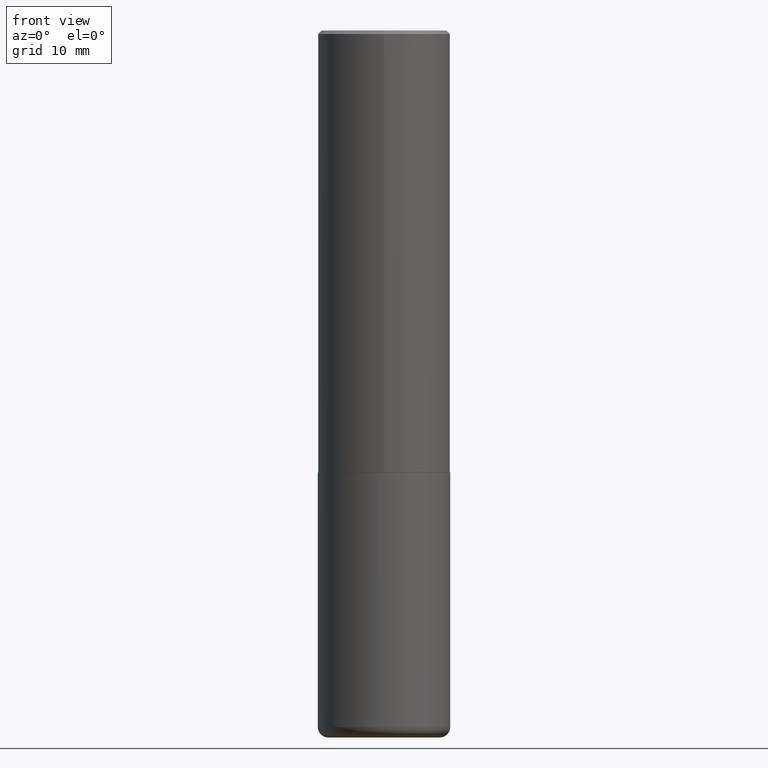
[diagram: clean part render]
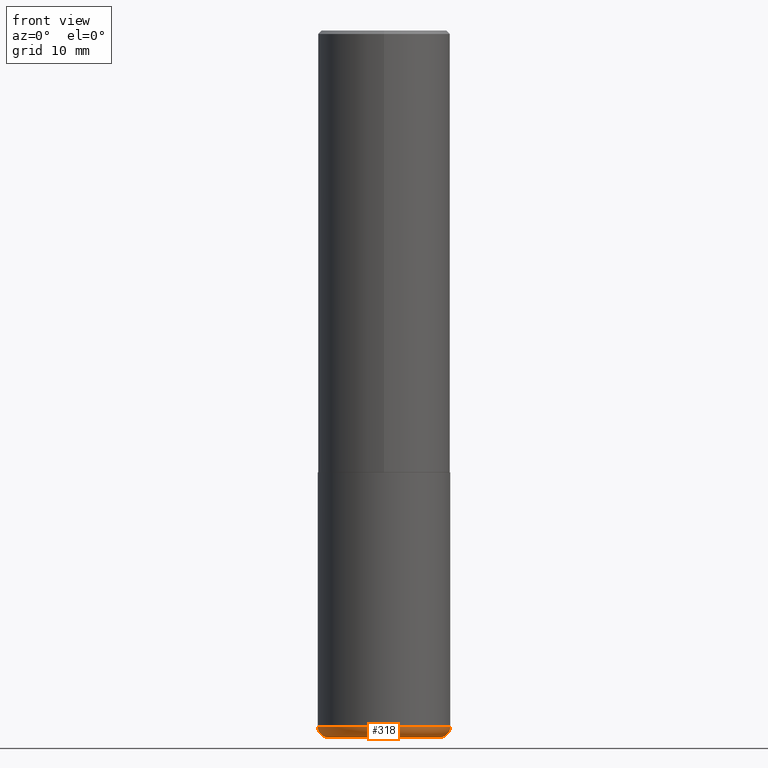
[diagram: same view with one face highlighted and labeled with its STEP entity id]
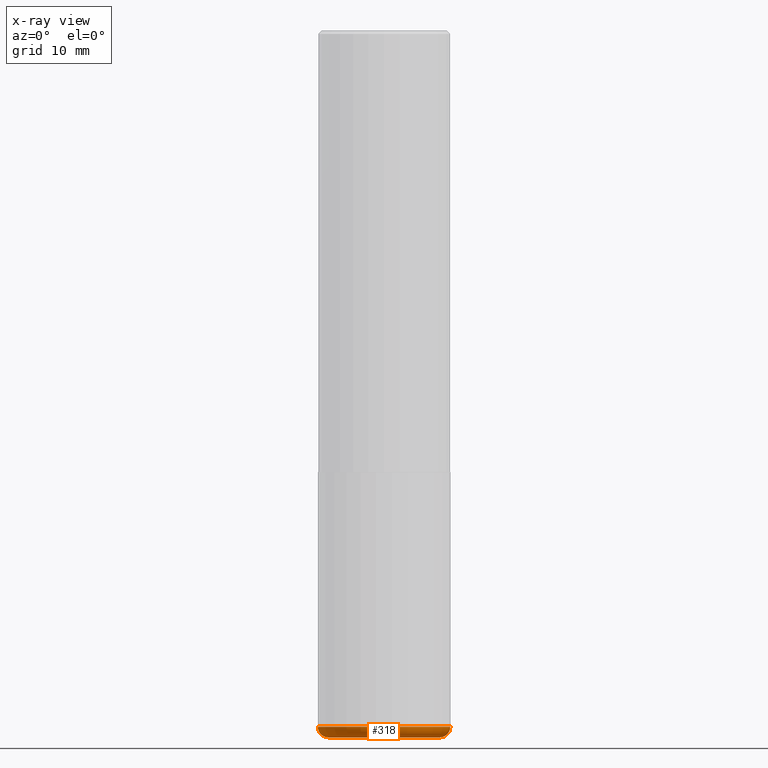
[diagram: x-ray of the same camera — body ghosted, the highlighted face saturated]
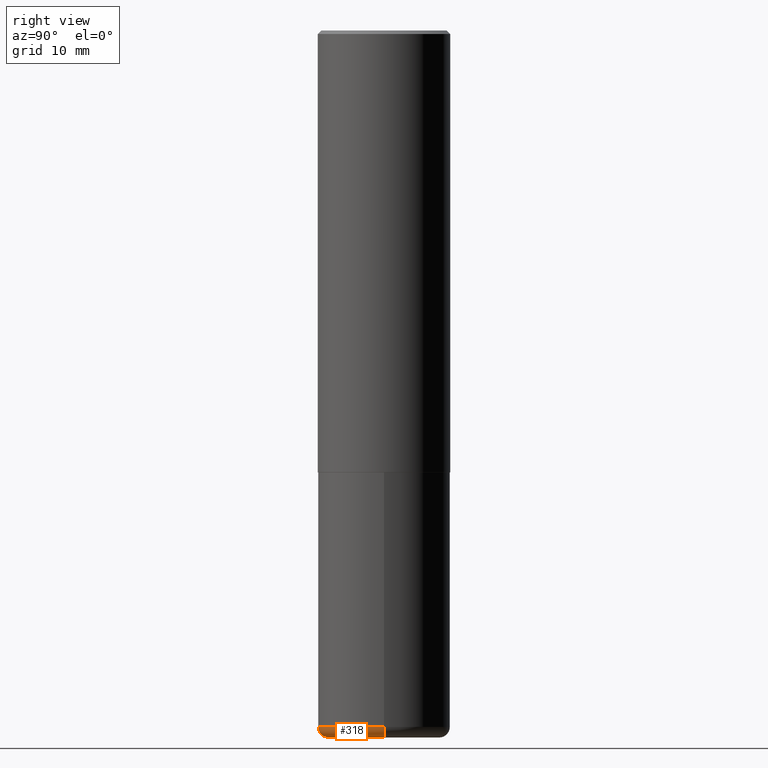
[diagram: same view with one face highlighted and labeled with its STEP entity id]
A machine part, front view. The second image highlights one B-rep face of the part: STEP entity #318.
The next image is the same camera in x-ray: the body ghosted, the highlighted face saturated — about 0% of this face is hidden behind the body in this view.
A second angle (right view) of the same face is appended — the face is thin or edge-on in the first view.
In plain terms, the highlighted toroidal blend (fillet) surface has major radius 8.001 mm and minor (blend) radius 1.524 mm.
Its self-contained STEP definition (entity closure, byte-faithful):
#9 = CARTESIAN_POINT ( 'NONE',  ( -0.3150000000000000577, -1.140980847683494193E-14, -4.000000000000000888 ) ) ;
#15 = ORIENTED_EDGE ( 'NONE', *, *, #368, .F. ) ;
#45 = AXIS2_PLACEMENT_3D ( 'NONE', #260, #57, #215 ) ;
#48 = VERTEX_POINT ( 'NONE', #307 ) ;
#50 = ORIENTED_EDGE ( 'NONE', *, *, #99, .T. ) ;
#57 = DIRECTION ( 'NONE',  ( -2.445468806185136597E-29, 3.491481338843145583E-15, 1.000000000000000000 ) ) ;
#58 = CARTESIAN_POINT ( 'NONE',  ( -0.3150000000000000577, -1.151822685739767881E-14, -3.939999999999999947 ) ) ;
#66 = DIRECTION ( 'NONE',  ( 1.000000000000000000, -6.982962677686271444E-15, 0.000000000000000000 ) ) ;
#99 = EDGE_CURVE ( 'NONE', #48, #231, #104, .T. ) ;
#104 = CIRCLE ( 'NONE', #367, 0.06000000000000024758 ) ;
#106 = FACE_OUTER_BOUND ( 'NONE', #210, .T. ) ;
#138 = CIRCLE ( 'NONE', #45, 0.3750000000000001110 ) ;
#151 = CARTESIAN_POINT ( 'NONE',  ( 0.3750000000000002220, -1.637504747917434403E-14, -3.939999999999999947 ) ) ;
#163 = EDGE_CURVE ( 'NONE', #264, #200, #285, .T. ) ;
#166 = CARTESIAN_POINT ( 'NONE',  ( 9.635147096369438236E-29, -1.375643647504199401E-14, -3.939999999999999947 ) ) ;
#170 = DIRECTION ( 'NONE',  ( 1.000000000000000000, -6.982962677686267499E-15, 4.883557194083113462E-29 ) ) ;
#185 = DIRECTION ( 'NONE',  ( 1.000000000000000000, -6.982962677686267499E-15, 0.000000000000000000 ) ) ;
#190 = CARTESIAN_POINT ( 'NONE',  ( -0.3750000000000002220, -1.109190121594161832E-14, -3.939999999999999947 ) ) ;
#193 = AXIS2_PLACEMENT_3D ( 'NONE', #295, #220, #185 ) ;
#200 = VERTEX_POINT ( 'NONE', #190 ) ;
#210 = EDGE_LOOP ( 'NONE', ( #273, #343, #50, #15 ) ) ;
#215 = DIRECTION ( 'NONE',  ( 1.000000000000000000, -6.982962677686265922E-15, 0.000000000000000000 ) ) ;
#217 = DIRECTION ( 'NONE',  ( -1.000000000000000000, 7.105427357600993970E-15, 0.000000000000000000 ) ) ;
#220 = DIRECTION ( 'NONE',  ( -2.445468806185136597E-29, 3.491481338843145583E-15, 1.000000000000000000 ) ) ;
#221 = CIRCLE ( 'NONE', #193, 0.3150000000000000577 ) ;
#231 = VERTEX_POINT ( 'NONE', #151 ) ;
#232 = EDGE_CURVE ( 'NONE', #264, #48, #221, .T. ) ;
#242 = AXIS2_PLACEMENT_3D ( 'NONE', #166, #405, #170 ) ;
#260 = CARTESIAN_POINT ( 'NONE',  ( 9.635147096369438236E-29, -1.375643647504199401E-14, -3.939999999999999947 ) ) ;
#261 = DIRECTION ( 'NONE',  ( 7.105427357601001859E-15, 1.000000000000000000, -3.491481338843145583E-15 ) ) ;
#264 = VERTEX_POINT ( 'NONE', #9 ) ;
#267 = AXIS2_PLACEMENT_3D ( 'NONE', #58, #261, #217 ) ;
#273 = ORIENTED_EDGE ( 'NONE', *, *, #163, .F. ) ;
#285 = CIRCLE ( 'NONE', #267, 0.06000000000000024758 ) ;
#295 = CARTESIAN_POINT ( 'NONE',  ( 9.781875224740547508E-29, -1.396592535537258391E-14, -4.000000000000000888 ) ) ;
#307 = CARTESIAN_POINT ( 'NONE',  ( 0.3150000000000000577, -1.616555859884375729E-14, -4.000000000000000888 ) ) ;
#318 = ADVANCED_FACE ( 'NONE', ( #106 ), #415, .T. ) ;
#320 = CARTESIAN_POINT ( 'NONE',  ( 0.3150000000000000577, -1.595606971851316740E-14, -3.939999999999999947 ) ) ;
#327 = DIRECTION ( 'NONE',  ( -6.982962677686266711E-15, -1.000000000000000000, 3.491481338843145583E-15 ) ) ;
#343 = ORIENTED_EDGE ( 'NONE', *, *, #232, .T. ) ;
#367 = AXIS2_PLACEMENT_3D ( 'NONE', #320, #327, #66 ) ;
#368 = EDGE_CURVE ( 'NONE', #200, #231, #138, .T. ) ;
#405 = DIRECTION ( 'NONE',  ( -2.445468806185136597E-29, 3.491481338843145583E-15, 1.000000000000000000 ) ) ;
#415 = TOROIDAL_SURFACE ( 'NONE', #242, 0.3150000000000000577, 0.06000000000000024758 ) ;